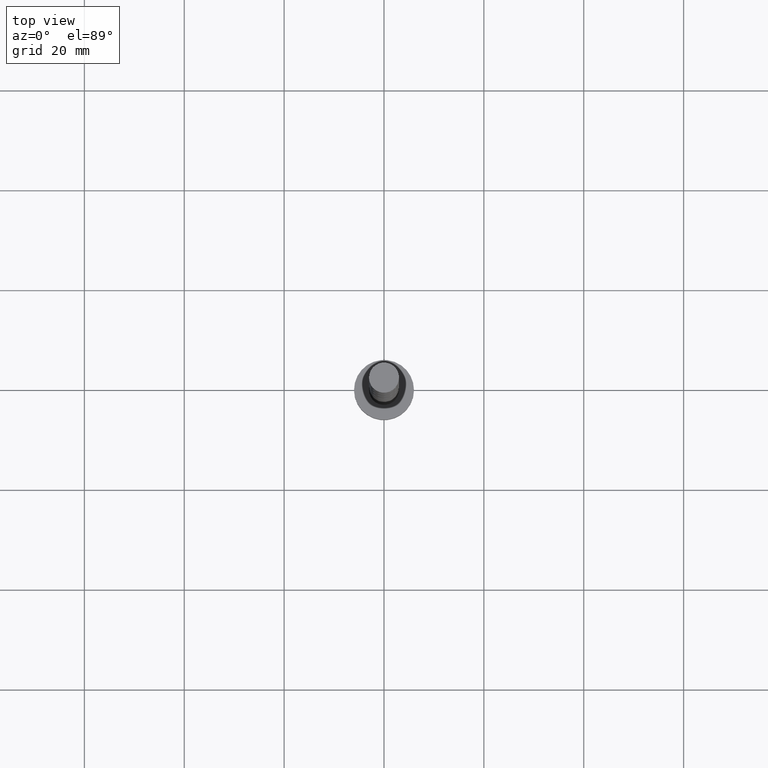
[diagram: clean part render]
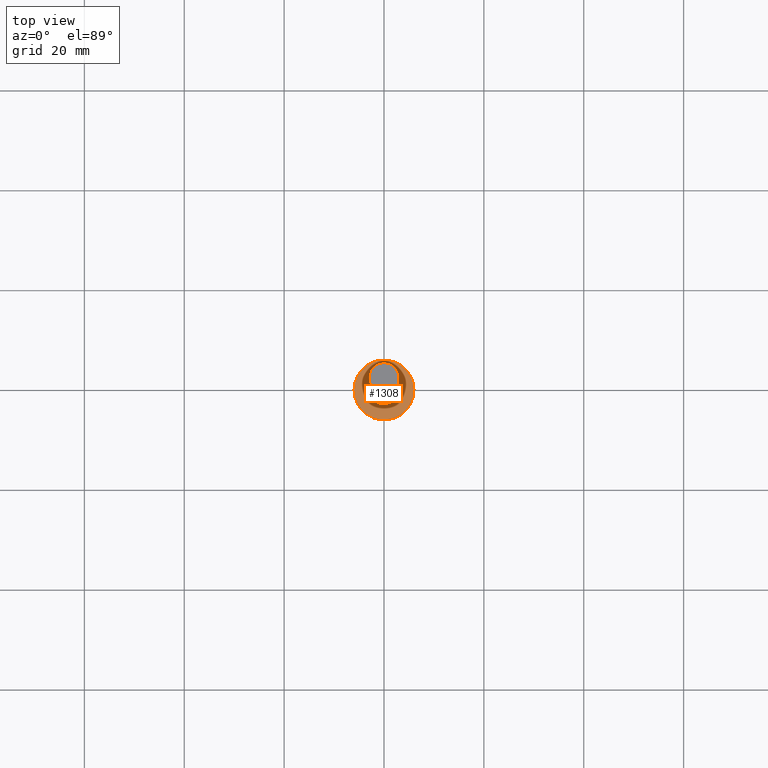
[diagram: same view with one face highlighted and labeled with its STEP entity id]
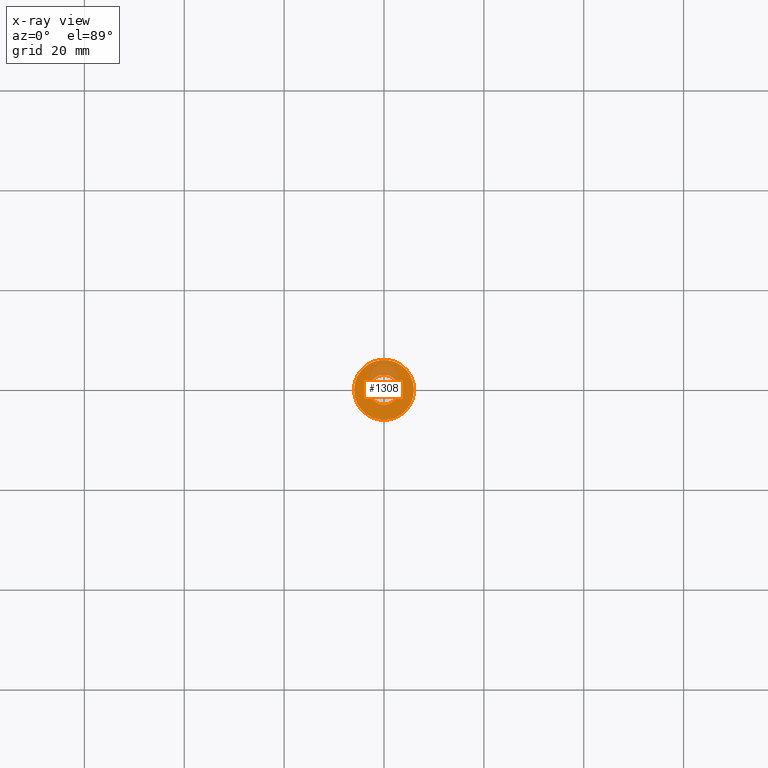
[diagram: x-ray of the same camera — body ghosted, the highlighted face saturated]
A machine part, top view. The second image highlights one B-rep face of the part: STEP entity #1308.
The next image is the same camera in x-ray: the body ghosted, the highlighted face saturated — about 18% of this face is hidden behind the body in this view.
In plain terms, the highlighted planar face has unit normal (0, 0, 1).
Its self-contained STEP definition (entity closure, byte-faithful):
#14 = EDGE_CURVE ( 'NONE', #1355, #1552, #284, .T. ) ;
#92 = DIRECTION ( 'NONE',  ( 1.000000000000000000, 0.000000000000000000, 0.000000000000000000 ) ) ;
#95 = CARTESIAN_POINT ( 'NONE',  ( 0.000000000000000000, 0.000000000000000000, 5.000000000000000000 ) ) ;
#105 = CARTESIAN_POINT ( 'NONE',  ( 3.000000000000000444, 3.673940397442060361E-16, 5.000000000000000000 ) ) ;
#138 = EDGE_CURVE ( 'NONE', #1552, #1355, #417, .T. ) ;
#183 = AXIS2_PLACEMENT_3D ( 'NONE', #1517, #377, #1266 ) ;
#184 = ORIENTED_EDGE ( 'NONE', *, *, #1431, .T. ) ;
#187 = FACE_BOUND ( 'NONE', #590, .T. ) ;
#228 = DIRECTION ( 'NONE',  ( 1.000000000000000000, 0.000000000000000000, -0.000000000000000000 ) ) ;
#256 = EDGE_LOOP ( 'NONE', ( #184, #1379 ) ) ;
#267 = AXIS2_PLACEMENT_3D ( 'NONE', #1311, #545, #668 ) ;
#284 = CIRCLE ( 'NONE', #1585, 3.000000000000000444 ) ;
#377 = DIRECTION ( 'NONE',  ( 0.000000000000000000, 0.000000000000000000, 1.000000000000000000 ) ) ;
#384 = ORIENTED_EDGE ( 'NONE', *, *, #14, .F. ) ;
#417 = CIRCLE ( 'NONE', #1323, 3.000000000000000444 ) ;
#545 = DIRECTION ( 'NONE',  ( 0.000000000000000000, 0.000000000000000000, 1.000000000000000000 ) ) ;
#590 = EDGE_LOOP ( 'NONE', ( #384, #809 ) ) ;
#605 = EDGE_CURVE ( 'NONE', #1518, #1195, #1627, .T. ) ;
#637 = CARTESIAN_POINT ( 'NONE',  ( 6.000000000000000888, 7.347880794884120722E-16, 5.000000000000000000 ) ) ;
#668 = DIRECTION ( 'NONE',  ( 1.000000000000000000, 0.000000000000000000, 0.000000000000000000 ) ) ;
#704 = DIRECTION ( 'NONE',  ( 1.000000000000000000, 0.000000000000000000, 0.000000000000000000 ) ) ;
#809 = ORIENTED_EDGE ( 'NONE', *, *, #138, .F. ) ;
#980 = AXIS2_PLACEMENT_3D ( 'NONE', #95, #1465, #228 ) ;
#1009 = DIRECTION ( 'NONE',  ( 0.000000000000000000, 0.000000000000000000, 1.000000000000000000 ) ) ;
#1010 = CIRCLE ( 'NONE', #183, 6.000000000000000888 ) ;
#1115 = FACE_OUTER_BOUND ( 'NONE', #256, .T. ) ;
#1195 = VERTEX_POINT ( 'NONE', #1368 ) ;
#1232 = PLANE ( 'NONE',  #980 ) ;
#1266 = DIRECTION ( 'NONE',  ( 1.000000000000000000, 0.000000000000000000, 0.000000000000000000 ) ) ;
#1308 = ADVANCED_FACE ( 'NONE', ( #187, #1115 ), #1232, .T. ) ;
#1311 = CARTESIAN_POINT ( 'NONE',  ( 0.000000000000000000, 0.000000000000000000, 5.000000000000000000 ) ) ;
#1323 = AXIS2_PLACEMENT_3D ( 'NONE', #1367, #1009, #92 ) ;
#1331 = CARTESIAN_POINT ( 'NONE',  ( 0.000000000000000000, 0.000000000000000000, 5.000000000000000000 ) ) ;
#1355 = VERTEX_POINT ( 'NONE', #1479 ) ;
#1367 = CARTESIAN_POINT ( 'NONE',  ( 0.000000000000000000, 0.000000000000000000, 5.000000000000000000 ) ) ;
#1368 = CARTESIAN_POINT ( 'NONE',  ( -6.000000000000000888, 0.000000000000000000, 5.000000000000000000 ) ) ;
#1379 = ORIENTED_EDGE ( 'NONE', *, *, #605, .T. ) ;
#1431 = EDGE_CURVE ( 'NONE', #1195, #1518, #1010, .T. ) ;
#1465 = DIRECTION ( 'NONE',  ( 0.000000000000000000, 0.000000000000000000, 1.000000000000000000 ) ) ;
#1479 = CARTESIAN_POINT ( 'NONE',  ( -3.000000000000000444, 0.000000000000000000, 5.000000000000000000 ) ) ;
#1517 = CARTESIAN_POINT ( 'NONE',  ( 0.000000000000000000, 0.000000000000000000, 5.000000000000000000 ) ) ;
#1518 = VERTEX_POINT ( 'NONE', #637 ) ;
#1540 = DIRECTION ( 'NONE',  ( 0.000000000000000000, 0.000000000000000000, 1.000000000000000000 ) ) ;
#1552 = VERTEX_POINT ( 'NONE', #105 ) ;
#1585 = AXIS2_PLACEMENT_3D ( 'NONE', #1331, #1540, #704 ) ;
#1627 = CIRCLE ( 'NONE', #267, 6.000000000000000888 ) ;